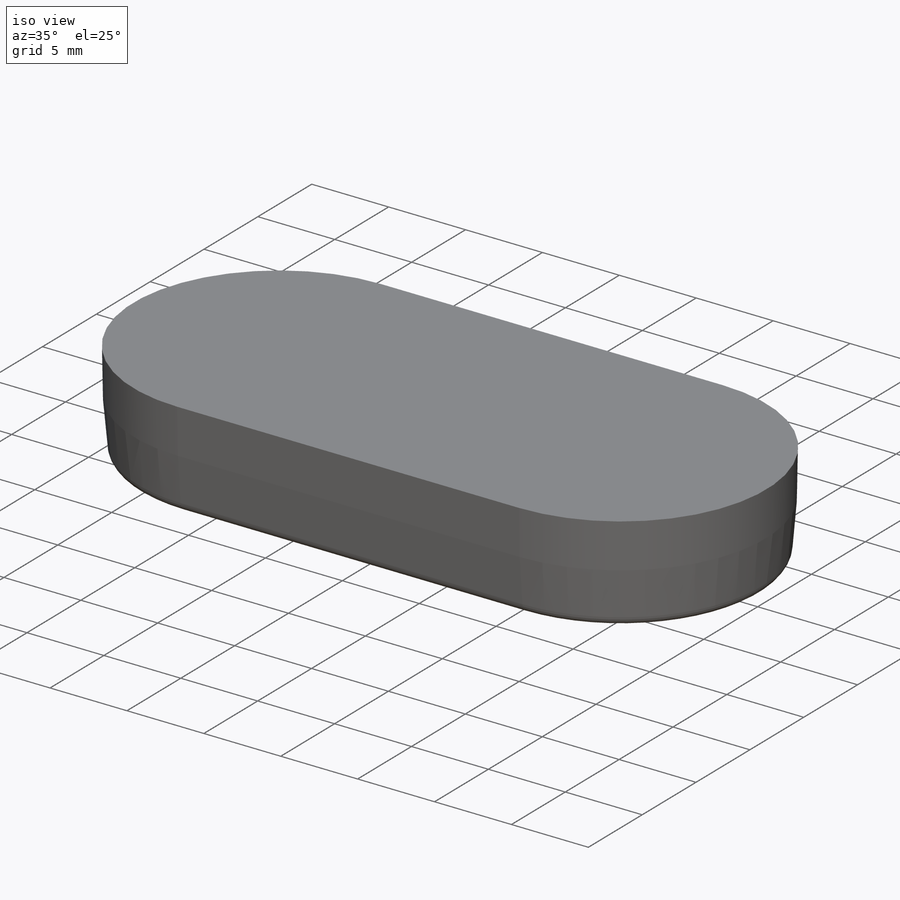
[diagram: iso view]
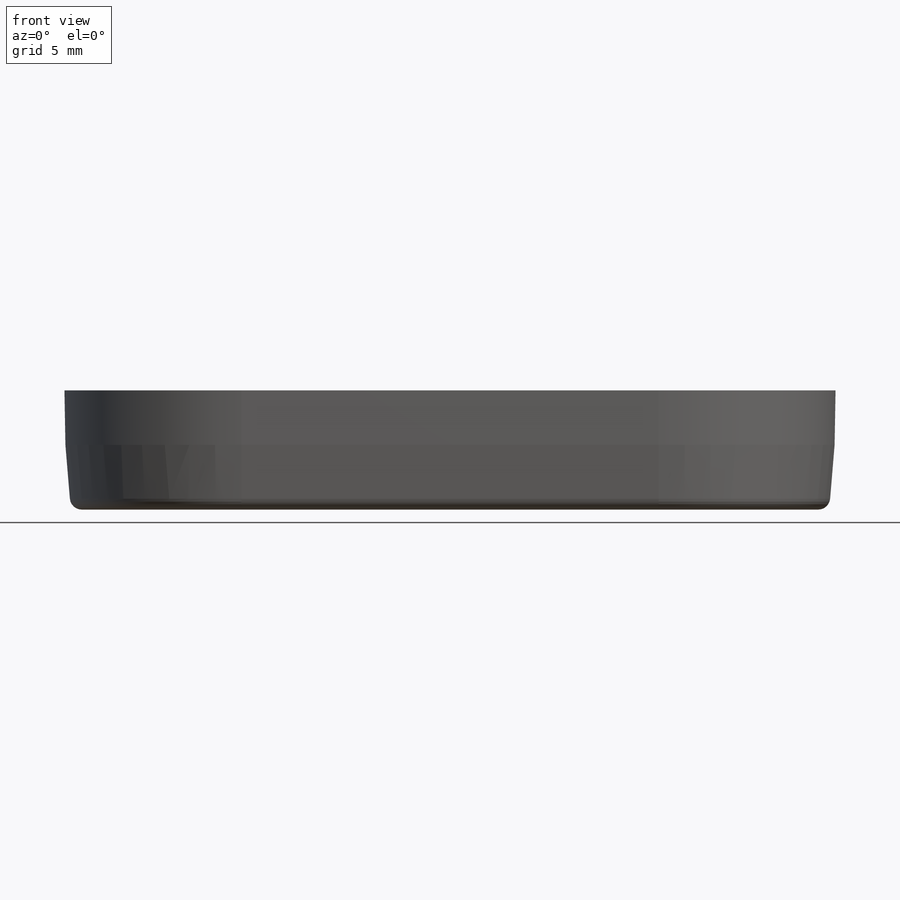
[diagram: front view]
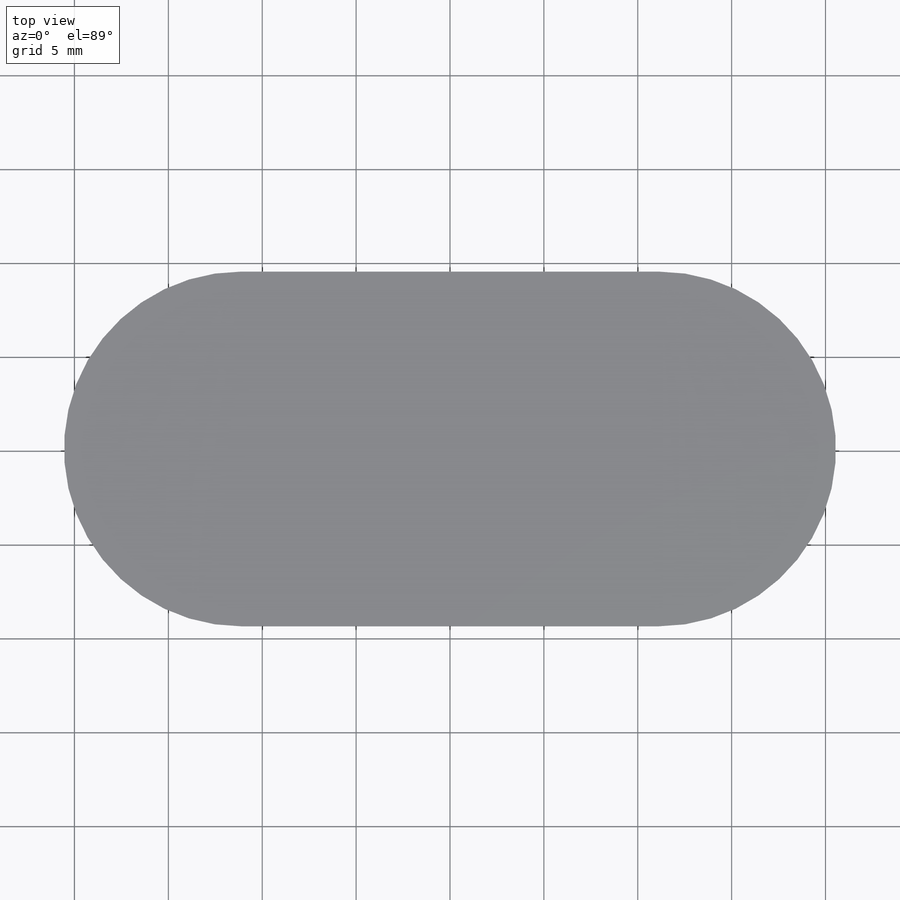
[diagram: top view]
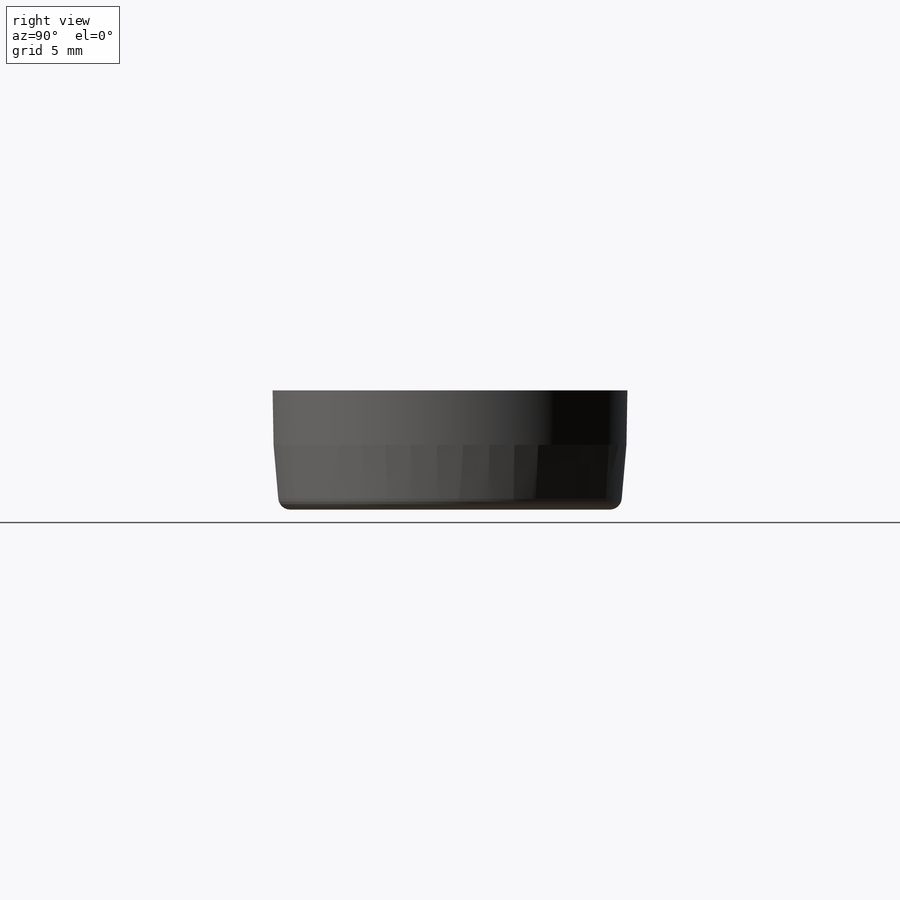
[diagram: right view]
SOLIDWORKS PART (.sldprt)
format: sldprt  version: not decoded by parser v0  size: 388,608 bytes
history: native  units: mm
features: sketch x5, extrude x2, cut_extrude x2, material x1, pattern_linear x1, fillet x1 (+12 scaffold rows collapsed)
feature tree (24):
  scaffold x12  (default folders/planes/origin — collapsed)
  material  "CA"
  sketch  "Sketch1"  dims[c1.D3=3.175mm c1.D1=38.1mm c1.D2=3.175mm c1.D4=3.175mm c2.D1=25.4mm c2.D2=25.4mm c2.D3=27.4066mm c2.D4=~30.664067mm c3.D1=18.8976mm c3.D2=41.1226mm]
  extrude  "Boss-Extrude1"  Depth=6.35mm
  sketch  "Sketch6"  dims[c1.D1=1.5875mm c1.D2=~8.361978mm c2.D2=90.0deg c2.D3=9.525mm]
  cut_extrude  "Cut-Extrude3"  [1 undecoded]
  pattern_linear  "LPattern1"  Count1=12 Count2=8 Spacing1=3.175mm Spacing2=3.175mm
  sketch  "Sketch7"  dims[D1=0.0mm D2=2.159mm]
  extrude  "Boss-Extrude3"  Depth=6.35mm
  sketch  "Sketch8"  dims[D1=0.2032mm]
  cut_extrude  "Cut-Extrude4"  [1 undecoded]
  fillet  "Fillet2"  Radius=0.635mm
  sketch  "Sketch11 - OFFSET .005"  dims[D1=0.127mm]
decode coverage: 9 of 11 modeling features carry decoded parameters
note: ~ marks probable driven/reference dimensions
note: 2 parameter values undecoded
note: suppression state not decoded; provenance and decode notes live in map.json
